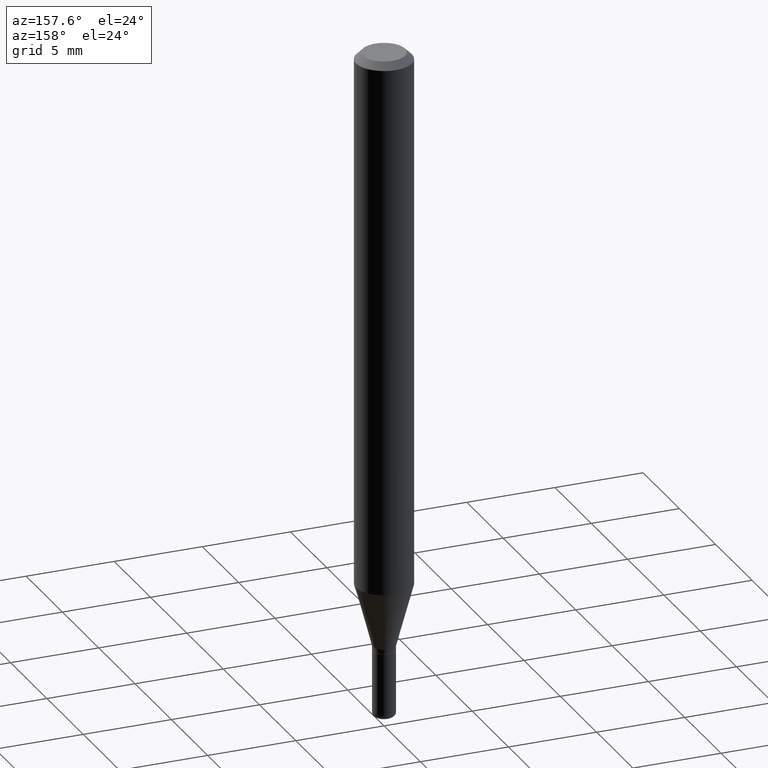
[diagram: clean part render]
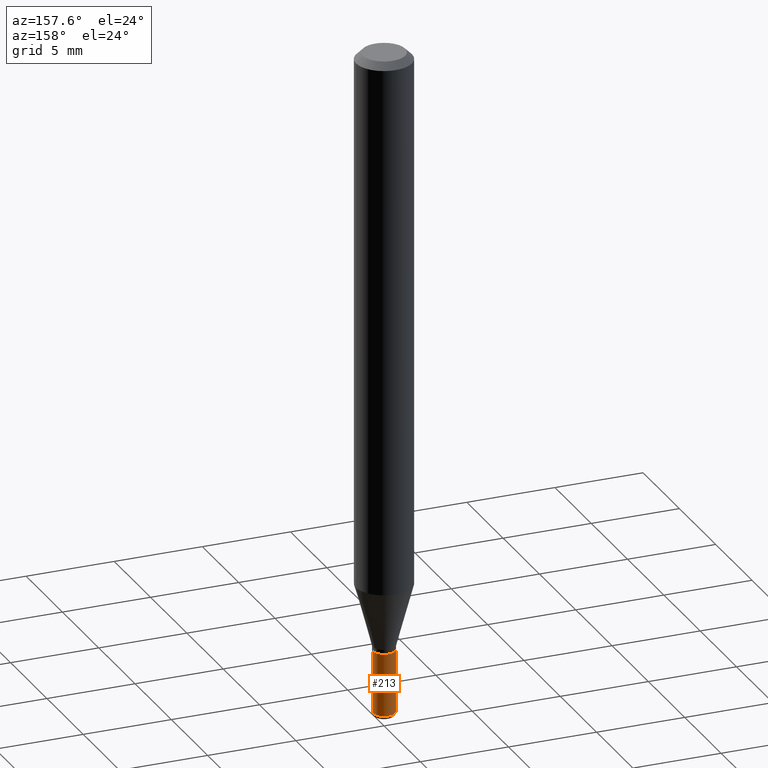
[diagram: same view with one face highlighted and labeled with its STEP entity id]
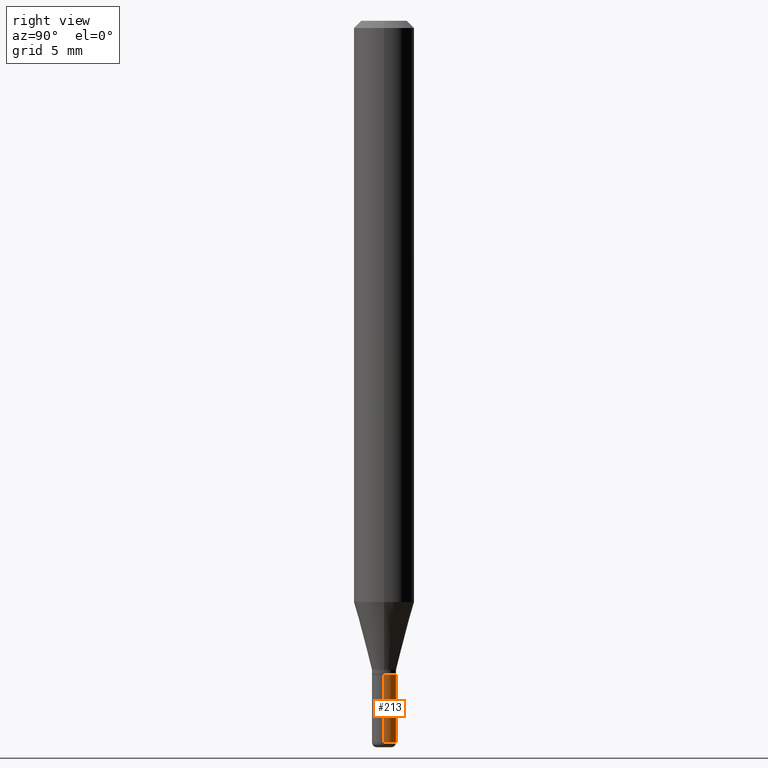
[diagram: same view with one face highlighted and labeled with its STEP entity id]
A machine part, auxiliary view. The second image highlights one B-rep face of the part: STEP entity #213.
A second angle (right view) of the same face is appended — the face is thin or edge-on in the first view.
In plain terms, the highlighted cylindrical surface (edge-blend (fillet) strip) has radius 0.635 mm, axis along (-0, 0, 1).
Its self-contained STEP definition (entity closure, byte-faithful):
#4 = CYLINDRICAL_SURFACE ( 'NONE', #412, 0.02499999999999997363 ) ;
#8 = CARTESIAN_POINT ( 'NONE',  ( 0.02499999999999997363, -1.745740669421564705E-16, 1.219044193948982547E-30 ) ) ;
#61 = ORIENTED_EDGE ( 'NONE', *, *, #182, .T. ) ;
#64 = DIRECTION ( 'NONE',  ( 1.000000000000000000, -6.982962677686254878E-15, 0.000000000000000000 ) ) ;
#69 = EDGE_CURVE ( 'NONE', #311, #487, #72, .T. ) ;
#72 = LINE ( 'NONE', #119, #244 ) ;
#107 = AXIS2_PLACEMENT_3D ( 'NONE', #356, #476, #313 ) ;
#111 = VERTEX_POINT ( 'NONE', #354 ) ;
#116 = CIRCLE ( 'NONE', #241, 0.02500000000000000139 ) ;
#119 = CARTESIAN_POINT ( 'NONE',  ( -0.02499999999999997363, 1.776356839400248591E-16, -1.229733772563725079E-30 ) ) ;
#163 = CARTESIAN_POINT ( 'NONE',  ( -0.02499999999999994588, -4.780267817217242146E-15, -1.490000000000000213 ) ) ;
#168 = DIRECTION ( 'NONE',  ( -2.445468806185136597E-29, 3.491481338843145583E-15, 1.000000000000000000 ) ) ;
#182 = EDGE_CURVE ( 'NONE', #296, #311, #441, .T. ) ;
#213 = ADVANCED_FACE ( 'NONE', ( #366 ), #4, .T. ) ;
#215 = VECTOR ( 'NONE', #477, 39.37007874015748143 ) ;
#229 = ORIENTED_EDGE ( 'NONE', *, *, #69, .T. ) ;
#236 = DIRECTION ( 'NONE',  ( -2.445468806185136877E-29, 3.491481338843145188E-15, 1.000000000000000000 ) ) ;
#241 = AXIS2_PLACEMENT_3D ( 'NONE', #488, #384, #64 ) ;
#244 = VECTOR ( 'NONE', #236, 39.37007874015748143 ) ;
#287 = LINE ( 'NONE', #8, #215 ) ;
#296 = VERTEX_POINT ( 'NONE', #478 ) ;
#302 = CARTESIAN_POINT ( 'NONE',  ( -0.02500000000000000139, -4.780267817217242146E-15, -1.350000000000000089 ) ) ;
#311 = VERTEX_POINT ( 'NONE', #163 ) ;
#313 = DIRECTION ( 'NONE',  ( 1.000000000000000000, -6.982962677686269866E-15, 0.000000000000000000 ) ) ;
#336 = EDGE_CURVE ( 'NONE', #296, #111, #287, .T. ) ;
#338 = ORIENTED_EDGE ( 'NONE', *, *, #407, .F. ) ;
#354 = CARTESIAN_POINT ( 'NONE',  ( 0.02500000000000000139, -4.888073874380403263E-15, -1.350000000000000089 ) ) ;
#356 = CARTESIAN_POINT ( 'NONE',  ( 3.643748521215853910E-29, -5.202307194876288105E-15, -1.490000000000000213 ) ) ;
#366 = FACE_OUTER_BOUND ( 'NONE', #497, .T. ) ;
#373 = ORIENTED_EDGE ( 'NONE', *, *, #336, .F. ) ;
#384 = DIRECTION ( 'NONE',  ( -2.445468806185136597E-29, 3.491481338843145583E-15, 1.000000000000000000 ) ) ;
#406 = DIRECTION ( 'NONE',  ( 1.000000000000000000, -6.982962677686265922E-15, 4.876176775795935232E-29 ) ) ;
#407 = EDGE_CURVE ( 'NONE', #111, #487, #116, .T. ) ;
#412 = AXIS2_PLACEMENT_3D ( 'NONE', #486, #168, #406 ) ;
#441 = CIRCLE ( 'NONE', #107, 0.02499999999999994588 ) ;
#476 = DIRECTION ( 'NONE',  ( -2.445468806185136597E-29, 3.491481338843145583E-15, 1.000000000000000000 ) ) ;
#477 = DIRECTION ( 'NONE',  ( -2.445468806185136877E-29, 3.491481338843145188E-15, 1.000000000000000000 ) ) ;
#478 = CARTESIAN_POINT ( 'NONE',  ( 0.02499999999999994588, -5.376881261818443984E-15, -1.490000000000000213 ) ) ;
#486 = CARTESIAN_POINT ( 'NONE',  ( 0.000000000000000000, 0.000000000000000000, 0.000000000000000000 ) ) ;
#487 = VERTEX_POINT ( 'NONE', #302 ) ;
#488 = CARTESIAN_POINT ( 'NONE',  ( 3.301382888349935078E-29, -4.713499807438246596E-15, -1.350000000000000089 ) ) ;
#497 = EDGE_LOOP ( 'NONE', ( #61, #229, #338, #373 ) ) ;